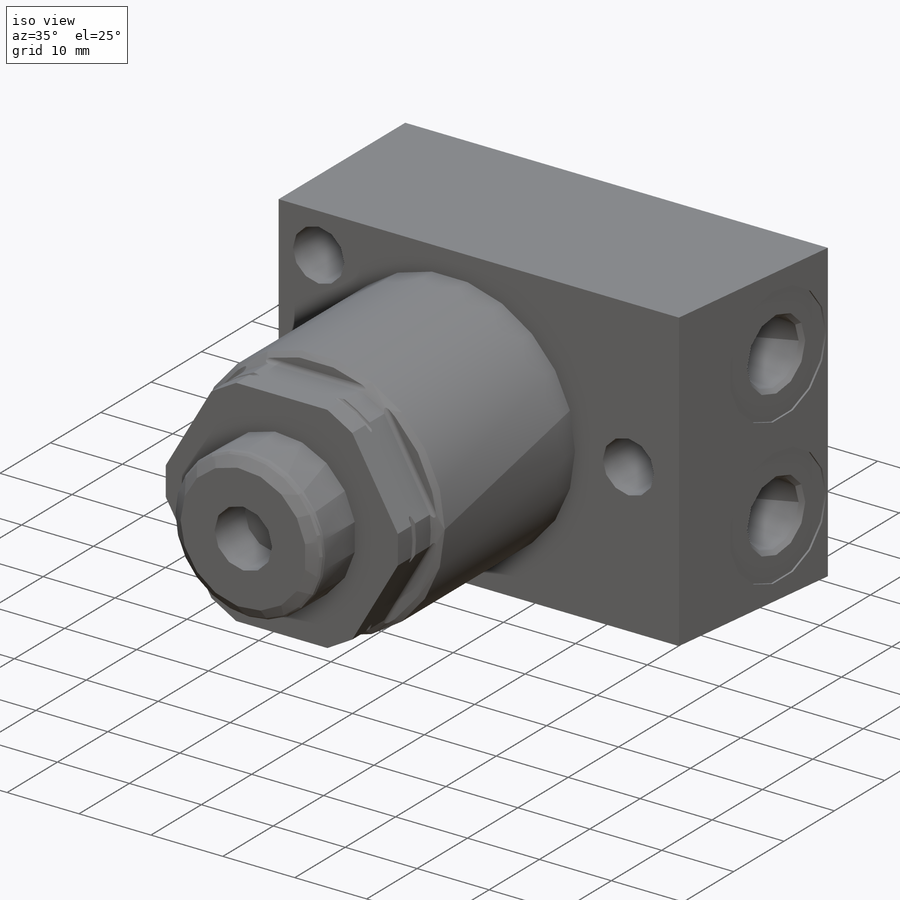
[diagram: iso view]
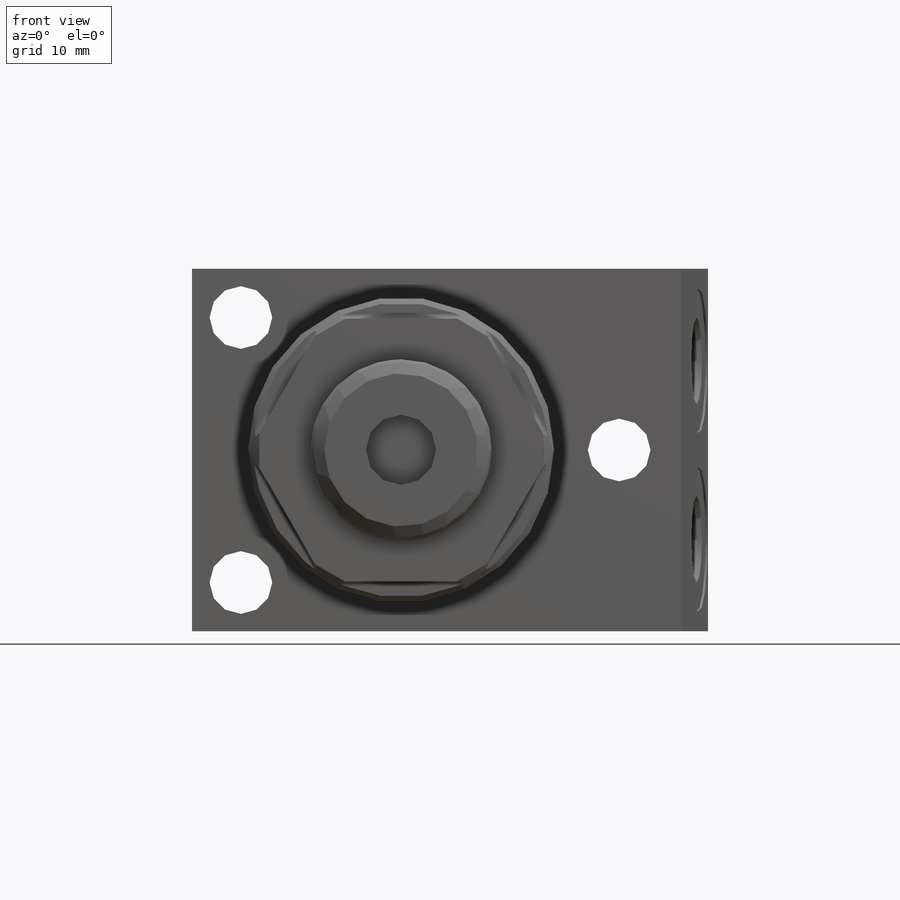
[diagram: front view]
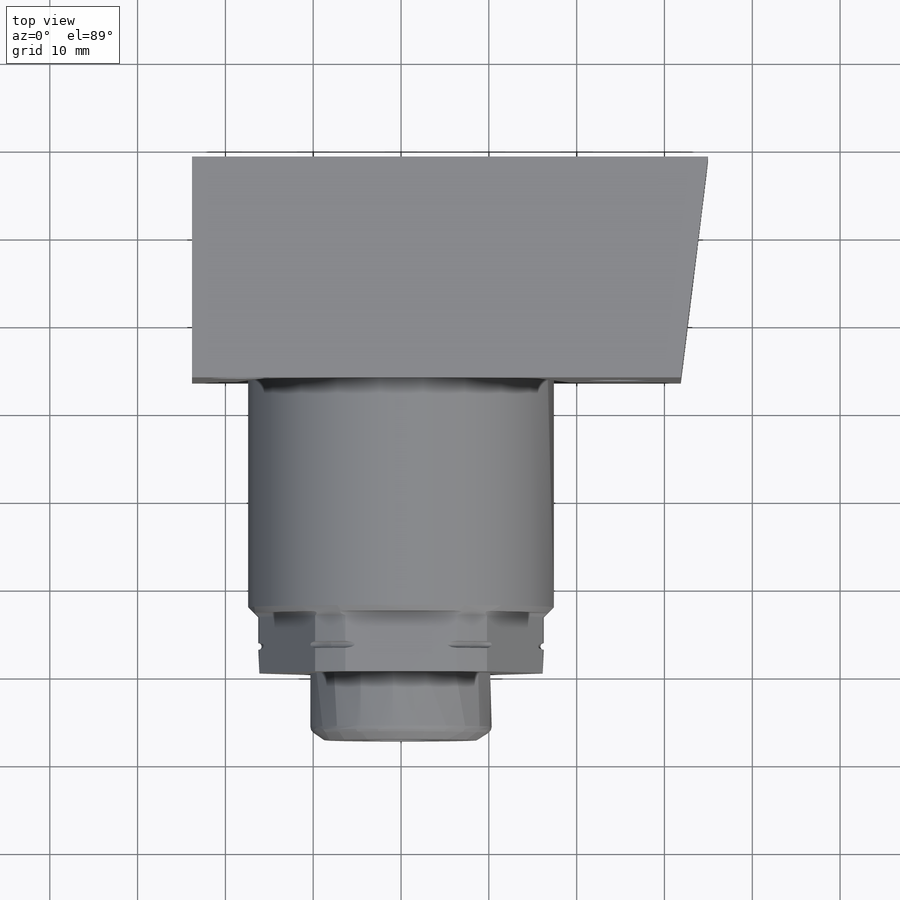
[diagram: top view]
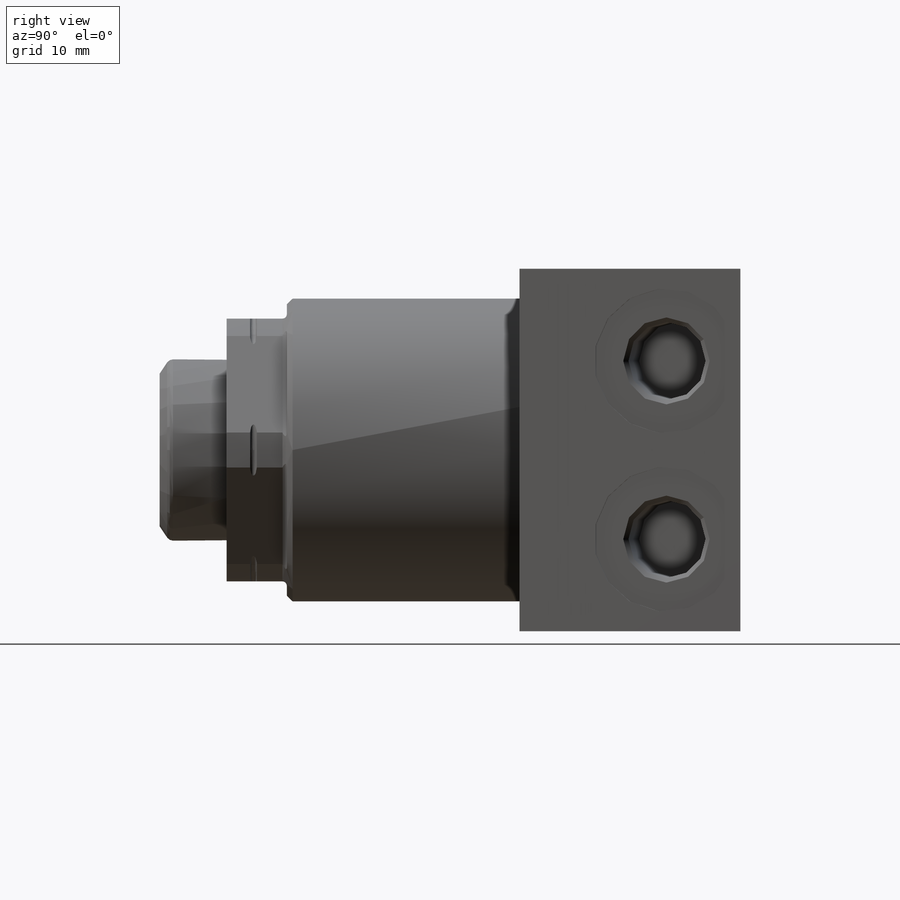
[diagram: right view]
SOLIDWORKS PART (.sldprt)
format: sldprt  version: not decoded by parser v0  size: 398,336 bytes
history: native  units: mm
features: sketch x9, revolve x2, cut_extrude x2, cut_revolve x2, material x1, pattern_circular x1, extrude x1, hole x1, plane x1, pattern_linear x1 (+11 scaffold rows collapsed)
feature tree (32):
  scaffold x11  (default folders/planes/origin — collapsed)
  material  "Alloy Steel"
  sketch  "Sketch1"  dims[c1.D1=27.9908mm c1.D2=4.6736mm c1.D3=0.8128mm c1.D4=24.0792mm c1.D5=31.0134mm c1.D6=8.2804mm c1.D7=34.8234mm c1.D8=~16.415711mm c2.D8=45.0deg c2.D9=49.7332mm c2.D10=32.512mm c2.D11=~8.100487mm c3.D11=45.0deg c3.D12=6.35mm]
  revolve  "Revolve1"  Angle=360deg
  sketch  "Sketch2"  dims[D4=0.508mm D1=29.9339mm D2=6.858mm D3=3.175mm]
  cut_extrude  "Cut-Extrude1"  [1 undecoded]
  pattern_circular  "CirPattern1"  Count=6 Angle=360deg
  sketch  "Sketch6"  dims[c1.D1=33.3502mm c1.D2=~29.301471mm c2.D2=83.0deg c2.D3=25.146mm c2.D4=58.7502mm c2.D5=23.7998mm]
  extrude  "Extrude1"  Depth=41.275mm
  sketch  "Sketch3"  dims[c1.D1=0.8128mm c1.D2=20.6502mm c1.D3=57.0484mm c1.D4=1.524mm c1.D5=17.4752mm c2.D3=66.1289mm]
  revolve  "Revolve2"  Angle=360deg
  sketch  "Sketch4"  dims[D1=8.001mm]
  cut_extrude  "Cut-Extrude2"  Depth=6.0452mm
  sketch  "Sketch5"  dims[D3=0.762mm D1=3.048mm D2=16.256mm D4=3.175mm]
  cut_revolve  "Cut-Revolve1"  Angle=360deg
  hole  "Hole1"  Diameter=7.1374mm Depth=25.146mm
  sketch  "Sketch8"  dims[D1=15.0876mm D2=18.2372mm D3=24.8412mm]
  sketch  "Sketch7"  dims[Diameter=7.1374mm Depth=25.146mm]
  plane  "Plane1"  Offset=10.1473mm
  sketch  "Sketch9"  dims[c1.D1=8.509mm c1.D2=16.51mm c1.D3=0.254mm c1.D4=8.8392mm c1.D5=10.5664mm c1.D6=~1.396103mm c2.D6=45.0deg c2.D7=9.906mm]
  cut_revolve  "Cut-Revolve2"  Angle=360deg
  pattern_linear  "LPattern1"  Count1=2 Count2=1 Spacing1=20.2946mm Spacing2=2.54mm
decode coverage: 18 of 19 modeling features carry decoded parameters
note: ~ marks probable driven/reference dimensions
note: 1 parameter value undecoded
note: suppression state not decoded; provenance and decode notes live in map.json
